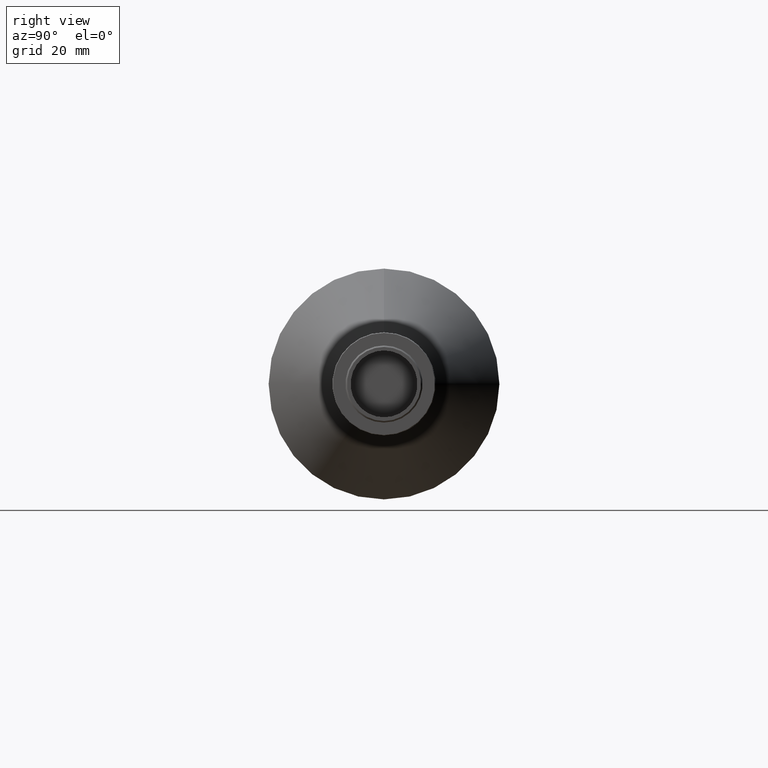
[diagram: clean part render]
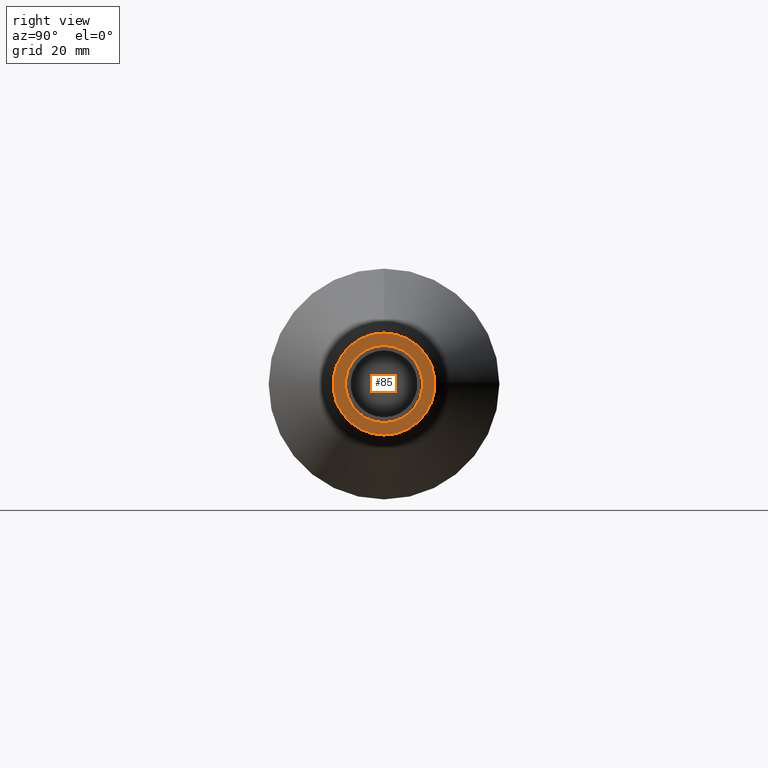
[diagram: same view with one face highlighted and labeled with its STEP entity id]
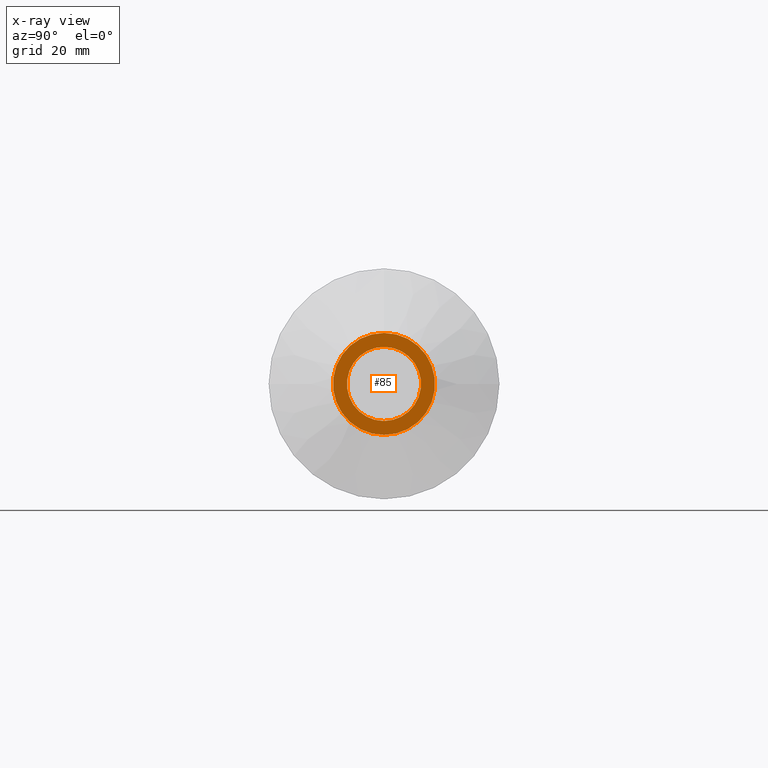
[diagram: x-ray of the same camera — body ghosted, the highlighted face saturated]
A machine part, right view. The second image highlights one B-rep face of the part: STEP entity #85.
The next image is the same camera in x-ray: the body ghosted, the highlighted face saturated — about 0% of this face is hidden behind the body in this view.
In plain terms, the highlighted planar face has unit normal (1, 0, 0).
Its self-contained STEP definition (entity closure, byte-faithful):
#8 = EDGE_CURVE ( 'NONE', #1475, #154, #716, .T. ) ;
#47 = CARTESIAN_POINT ( 'NONE',  ( 123.5340000000000060, 0.000000000000000000, 17.00000000000000000 ) ) ;
#85 = ADVANCED_FACE ( 'NONE', ( #2087, #372 ), #1897, .T. ) ;
#119 = EDGE_LOOP ( 'NONE', ( #562, #1090 ) ) ;
#135 = EDGE_CURVE ( 'NONE', #1382, #2130, #2035, .T. ) ;
#154 = VERTEX_POINT ( 'NONE', #222 ) ;
#222 = CARTESIAN_POINT ( 'NONE',  ( 123.5340000000000060, 2.069653090559026923E-15, -16.80000000000000071 ) ) ;
#275 = DIRECTION ( 'NONE',  ( -1.000000000000000000, -0.000000000000000000, -0.000000000000000000 ) ) ;
#372 = FACE_OUTER_BOUND ( 'NONE', #1268, .T. ) ;
#384 = CARTESIAN_POINT ( 'NONE',  ( 123.5340000000000060, 0.000000000000000000, 0.000000000000000000 ) ) ;
#406 = DIRECTION ( 'NONE',  ( 0.000000000000000000, 0.000000000000000000, -1.000000000000000000 ) ) ;
#416 = DIRECTION ( 'NONE',  ( -1.000000000000000000, -0.000000000000000000, -0.000000000000000000 ) ) ;
#562 = ORIENTED_EDGE ( 'NONE', *, *, #2176, .T. ) ;
#716 = CIRCLE ( 'NONE', #1025, 16.80000000000000071 ) ;
#824 = AXIS2_PLACEMENT_3D ( 'NONE', #47, #1171, #2123 ) ;
#853 = CARTESIAN_POINT ( 'NONE',  ( 123.5340000000000060, 0.000000000000000000, -12.20000000000000107 ) ) ;
#857 = DIRECTION ( 'NONE',  ( -1.000000000000000000, 0.000000000000000000, 0.000000000000000000 ) ) ;
#867 = DIRECTION ( 'NONE',  ( 0.000000000000000000, 0.000000000000000000, -1.000000000000000000 ) ) ;
#872 = CARTESIAN_POINT ( 'NONE',  ( 123.5340000000000060, 0.000000000000000000, 0.000000000000000000 ) ) ;
#946 = CIRCLE ( 'NONE', #2311, 16.80000000000000071 ) ;
#1025 = AXIS2_PLACEMENT_3D ( 'NONE', #1300, #1707, #1113 ) ;
#1065 = AXIS2_PLACEMENT_3D ( 'NONE', #2209, #275, #867 ) ;
#1090 = ORIENTED_EDGE ( 'NONE', *, *, #135, .T. ) ;
#1113 = DIRECTION ( 'NONE',  ( 0.000000000000000000, 0.000000000000000000, 1.000000000000000000 ) ) ;
#1128 = CARTESIAN_POINT ( 'NONE',  ( 123.5340000000000060, 1.494069094959771056E-15, 12.20000000000000107 ) ) ;
#1171 = DIRECTION ( 'NONE',  ( 1.000000000000000000, 0.000000000000000000, 0.000000000000000000 ) ) ;
#1250 = ORIENTED_EDGE ( 'NONE', *, *, #1796, .F. ) ;
#1253 = ORIENTED_EDGE ( 'NONE', *, *, #8, .F. ) ;
#1268 = EDGE_LOOP ( 'NONE', ( #1253, #1250 ) ) ;
#1300 = CARTESIAN_POINT ( 'NONE',  ( 123.5340000000000060, 0.000000000000000000, 0.000000000000000000 ) ) ;
#1382 = VERTEX_POINT ( 'NONE', #1128 ) ;
#1475 = VERTEX_POINT ( 'NONE', #2155 ) ;
#1627 = DIRECTION ( 'NONE',  ( 0.000000000000000000, 0.000000000000000000, 1.000000000000000000 ) ) ;
#1707 = DIRECTION ( 'NONE',  ( -1.000000000000000000, 0.000000000000000000, 0.000000000000000000 ) ) ;
#1752 = AXIS2_PLACEMENT_3D ( 'NONE', #384, #416, #406 ) ;
#1796 = EDGE_CURVE ( 'NONE', #154, #1475, #946, .T. ) ;
#1897 = PLANE ( 'NONE',  #824 ) ;
#2035 = CIRCLE ( 'NONE', #1752, 12.20000000000000107 ) ;
#2087 = FACE_BOUND ( 'NONE', #119, .T. ) ;
#2123 = DIRECTION ( 'NONE',  ( 0.000000000000000000, 0.000000000000000000, -1.000000000000000000 ) ) ;
#2130 = VERTEX_POINT ( 'NONE', #853 ) ;
#2150 = CIRCLE ( 'NONE', #1065, 12.20000000000000107 ) ;
#2155 = CARTESIAN_POINT ( 'NONE',  ( 123.5340000000000060, 0.000000000000000000, 16.80000000000000071 ) ) ;
#2176 = EDGE_CURVE ( 'NONE', #2130, #1382, #2150, .T. ) ;
#2209 = CARTESIAN_POINT ( 'NONE',  ( 123.5340000000000060, 0.000000000000000000, 0.000000000000000000 ) ) ;
#2311 = AXIS2_PLACEMENT_3D ( 'NONE', #872, #857, #1627 ) ;